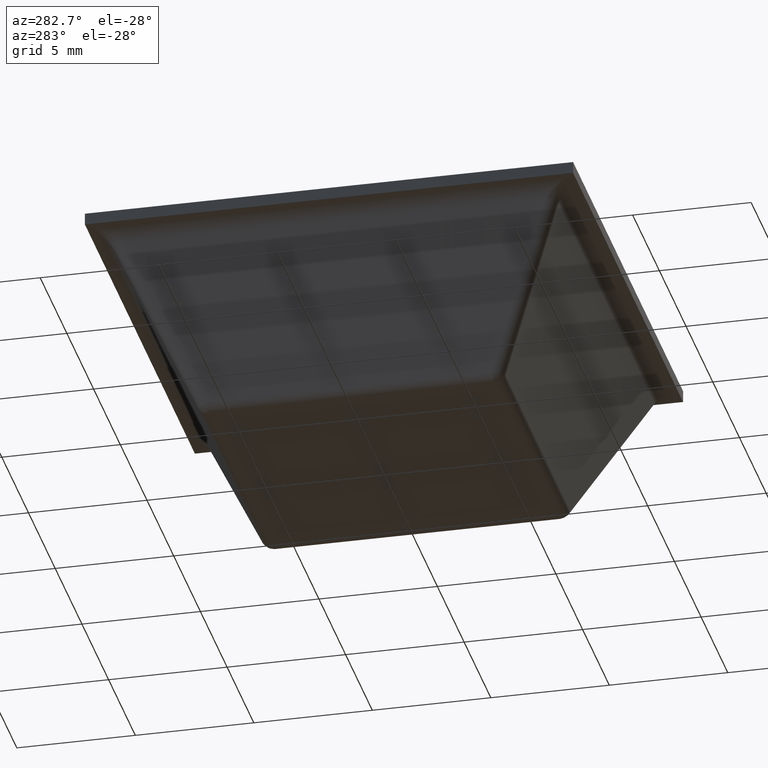
[diagram: clean part render]
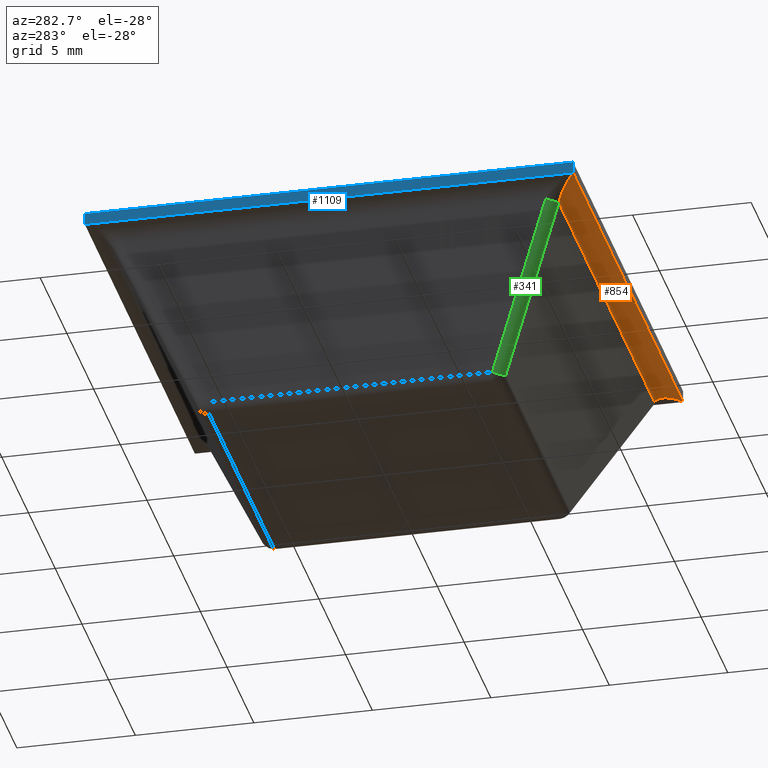
[diagram: same view with three faces highlighted in distinct colors, each labeled with its STEP entity id]
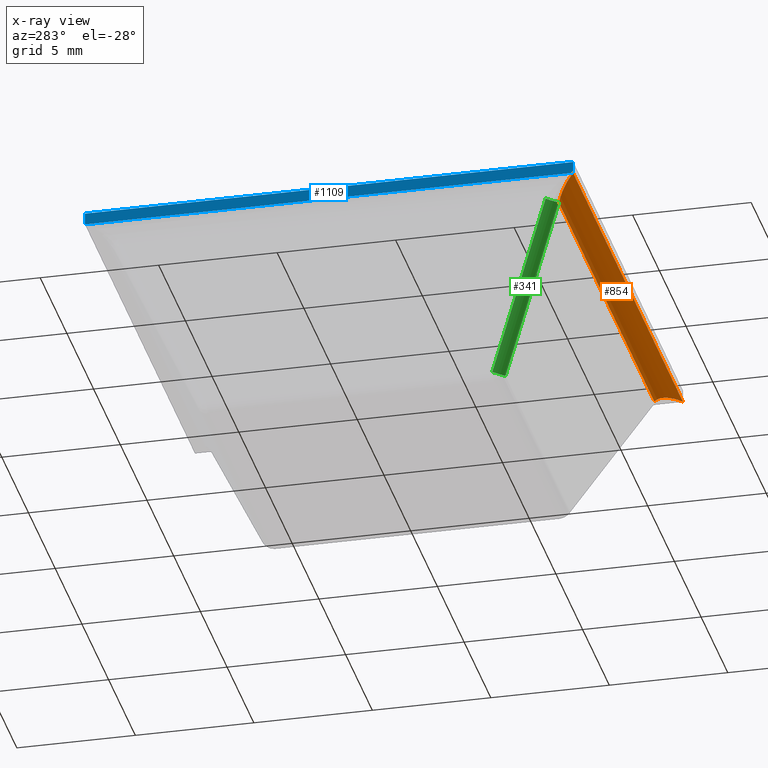
[diagram: x-ray of the same camera — body ghosted, the three highlighted faces saturated]
A machine part, auxiliary view with three faces highlighted in distinct colors.
The next image is the same camera in x-ray (body ghosted, the three faces saturated) — at least one of them is partly hidden behind the body in this view.
Their STEP definitions:

[orange] entity #854 — the highlighted face is a freeform B-spline surface patch.
#132=CARTESIAN_POINT('',(8.938393236846089,-9.391547127593508,6.522618273625180));
#133=VERTEX_POINT('',#132);
#193=CARTESIAN_POINT('',(10.297854909088340,-10.297854909088340,7.100000000000001));
#194=VERTEX_POINT('',#193);
#208=CARTESIAN_POINT('',(8.938393236846093,-9.391547127593501,6.522618273625195));
#209=CARTESIAN_POINT('',(9.342249531703445,-9.660784657498404,7.100000000000001));
#210=CARTESIAN_POINT('',(10.297854909088340,-10.297854909088329,7.100000000000001));
#218=(BOUNDED_CURVE()B_SPLINE_CURVE(2,(#208,#209,#210),.UNSPECIFIED.,.F.,.U.)CURVE()GEOMETRIC_REPRESENTATION_ITEM()QUASI_UNIFORM_CURVE()RATIONAL_B_SPLINE_CURVE((1.0,0.843391449335737,1.0))REPRESENTATION_ITEM(''));
#219=EDGE_CURVE('',#133,#194,#218,.T.);
#311=CARTESIAN_POINT('',(-8.938393236846089,-9.391547127593508,6.522618273625180));
#312=VERTEX_POINT('',#311);
#374=CARTESIAN_POINT('',(-10.297854909088340,-10.297854909088340,7.100000000000001));
#375=VERTEX_POINT('',#374);
#376=CARTESIAN_POINT('',(-10.297854909088340,-10.297854909088329,7.100000000000001));
#377=CARTESIAN_POINT('',(-9.342249531703438,-9.660784657498390,7.100000000000001));
#378=CARTESIAN_POINT('',(-8.938393236846100,-9.391547127593494,6.522618273625181));
#386=(BOUNDED_CURVE()B_SPLINE_CURVE(2,(#376,#377,#378),.UNSPECIFIED.,.F.,.U.)CURVE()GEOMETRIC_REPRESENTATION_ITEM()QUASI_UNIFORM_CURVE()RATIONAL_B_SPLINE_CURVE((1.0,0.843391449335732,1.0))REPRESENTATION_ITEM(''));
#387=EDGE_CURVE('',#375,#312,#386,.T.);
#826=CARTESIAN_POINT('',(-10.812747654542759,-10.306581444586710,7.099961923064171));
#827=CARTESIAN_POINT('',(10.825619973179119,-10.306581444586710,7.099961923064171));
#828=CARTESIAN_POINT('',(-10.812747654542758,-9.632098610961799,7.105848045580354));
#829=CARTESIAN_POINT('',(10.825619973179121,-9.632098610961799,7.105848045580354));
#830=CARTESIAN_POINT('',(-10.812747654542759,-9.373975376577054,6.482683432365092));
#831=CARTESIAN_POINT('',(10.825619973179119,-9.373975376577054,6.482683432365092));
#839=(BOUNDED_SURFACE()B_SPLINE_SURFACE(1,2,((#826,#828,#830),(#827,#829,#831)),.UNSPECIFIED.,.F.,.F.,.U.)B_SPLINE_SURFACE_WITH_KNOTS((2,2),(3,3),(0.0,21.638367627721880),(0.0,1.0),.UNSPECIFIED.)GEOMETRIC_REPRESENTATION_ITEM()RATIONAL_B_SPLINE_SURFACE(((1.0,0.829037572555042,1.0),(1.0,0.829037572555042,1.0)))REPRESENTATION_ITEM('')SURFACE());
#840=CARTESIAN_POINT('',(-10.297854909088340,-10.297854909088340,7.100000000000001));
#841=CARTESIAN_POINT('',(10.297854909088340,-10.297854909088340,7.100000000000001));
#842=QUASI_UNIFORM_CURVE('',1,(#840,#841),.UNSPECIFIED.,.F.,.U.);
#843=EDGE_CURVE('',#375,#194,#842,.T.);
#844=ORIENTED_EDGE('',*,*,#843,.F.);
#845=ORIENTED_EDGE('',*,*,#387,.T.);
#846=CARTESIAN_POINT('',(8.938393236846089,-9.391547127593508,6.522618273625180));
#847=CARTESIAN_POINT('',(-8.938393236846089,-9.391547127593508,6.522618273625180));
#848=QUASI_UNIFORM_CURVE('',1,(#846,#847),.UNSPECIFIED.,.F.,.U.);
#849=EDGE_CURVE('',#133,#312,#848,.T.);
#850=ORIENTED_EDGE('',*,*,#849,.F.);
#851=ORIENTED_EDGE('',*,*,#219,.T.);
#852=EDGE_LOOP('',(#844,#845,#850,#851));
#853=FACE_OUTER_BOUND('',#852,.T.);
#854=ADVANCED_FACE('',(#853),#839,.F.);

[blue] entity #1109 — the highlighted face is a freeform B-spline surface patch.
#1026=CARTESIAN_POINT('',(-10.300000000000001,-10.300000000000001,7.100000000000001));
#1027=VERTEX_POINT('',#1026);
#1033=CARTESIAN_POINT('',(-10.300000000000001,10.300000000000001,7.100000000000001));
#1034=VERTEX_POINT('',#1033);
#1035=CARTESIAN_POINT('',(-10.300000000000001,-10.300000000000001,7.100000000000001));
#1036=CARTESIAN_POINT('',(-10.300000000000001,10.300000000000001,7.100000000000001));
#1037=QUASI_UNIFORM_CURVE('',1,(#1035,#1036),.UNSPECIFIED.,.F.,.U.);
#1038=EDGE_CURVE('',#1027,#1034,#1037,.T.);
#1068=CARTESIAN_POINT('',(-10.300000000000001,10.300000000000001,7.600000000000000));
#1069=VERTEX_POINT('',#1068);
#1075=CARTESIAN_POINT('',(-10.300000000000001,-10.300000000000001,7.600000000000000));
#1076=VERTEX_POINT('',#1075);
#1077=CARTESIAN_POINT('',(-10.300000000000001,-10.300000000000001,7.600000000000000));
#1078=CARTESIAN_POINT('',(-10.300000000000001,10.300000000000001,7.600000000000000));
#1079=QUASI_UNIFORM_CURVE('',1,(#1077,#1078),.UNSPECIFIED.,.F.,.U.);
#1080=EDGE_CURVE('',#1076,#1069,#1079,.T.);
#1090=CARTESIAN_POINT('',(-10.300000000000001,-11.328970153451269,7.075024903068021));
#1091=CARTESIAN_POINT('',(-10.300000000000001,-11.328970153451269,7.624974904706999));
#1092=CARTESIAN_POINT('',(-10.300000000000001,11.328970521807969,7.075024903068021));
#1093=CARTESIAN_POINT('',(-10.300000000000001,11.328970521807969,7.624974904706999));
#1094=B_SPLINE_SURFACE_WITH_KNOTS('',1,1,((#1090,#1092),(#1091,#1093)),.UNSPECIFIED.,.F.,.F.,.U.,(2,2),(2,2),(0.041708171780035,0.958291507844999),(0.0,22.657940675259230),.UNSPECIFIED.);
#1095=CARTESIAN_POINT('',(-10.300000000000001,10.300000000000001,7.600000000000000));
#1096=CARTESIAN_POINT('',(-10.300000000000001,10.300000000000001,7.100000000000001));
#1097=QUASI_UNIFORM_CURVE('',1,(#1095,#1096),.UNSPECIFIED.,.F.,.U.);
#1098=EDGE_CURVE('',#1069,#1034,#1097,.T.);
#1099=ORIENTED_EDGE('',*,*,#1098,.T.);
#1100=ORIENTED_EDGE('',*,*,#1038,.F.);
#1101=CARTESIAN_POINT('',(-10.300000000000001,-10.300000000000001,7.600000000000000));
#1102=CARTESIAN_POINT('',(-10.300000000000001,-10.300000000000001,7.100000000000001));
#1103=QUASI_UNIFORM_CURVE('',1,(#1101,#1102),.UNSPECIFIED.,.F.,.U.);
#1104=EDGE_CURVE('',#1076,#1027,#1103,.T.);
#1105=ORIENTED_EDGE('',*,*,#1104,.F.);
#1106=ORIENTED_EDGE('',*,*,#1080,.T.);
#1107=EDGE_LOOP('',(#1099,#1100,#1105,#1106));
#1108=FACE_OUTER_BOUND('',#1107,.T.);
#1109=ADVANCED_FACE('',(#1108),#1094,.T.);

[green] entity #341 — the highlighted face is a freeform B-spline surface patch.
#251=CARTESIAN_POINT('',(-6.484618936203209,-6.031465045455819,0.288690863187422));
#252=VERTEX_POINT('',#251);
#266=CARTESIAN_POINT('',(-6.031465045455819,-6.484618936203209,0.288690863187422));
#267=VERTEX_POINT('',#266);
#281=CARTESIAN_POINT('',(-6.031465045455816,-6.484618936203209,0.288690863187414));
#282=CARTESIAN_POINT('',(-6.415947910680333,-6.415947910680306,0.141425378756792));
#283=CARTESIAN_POINT('',(-6.484618936203209,-6.031465045455819,0.288690863187422));
#291=(BOUNDED_CURVE()B_SPLINE_CURVE(2,(#281,#282,#283),.UNSPECIFIED.,.F.,.U.)CURVE()GEOMETRIC_REPRESENTATION_ITEM()QUASI_UNIFORM_CURVE()RATIONAL_B_SPLINE_CURVE((1.0,0.767660799182132,1.0))REPRESENTATION_ITEM(''));
#292=EDGE_CURVE('',#267,#252,#291,.T.);
#297=CARTESIAN_POINT('',(-5.944417026734398,-6.414292384941111,0.138451501433058));
#298=CARTESIAN_POINT('',(-8.998508457813827,-9.468383816020538,6.687971487024228));
#299=CARTESIAN_POINT('',(-6.367400170289844,-6.351741020429443,-0.029620603131557));
#300=CARTESIAN_POINT('',(-9.421491601369274,-9.405832451508868,6.519899382459612));
#301=CARTESIAN_POINT('',(-6.416270008486036,-5.929413543143065,0.144525559934702));
#302=CARTESIAN_POINT('',(-9.470361439565465,-8.983504974222489,6.694045545525874));
#310=(BOUNDED_SURFACE()B_SPLINE_SURFACE(1,2,((#297,#299,#301),(#298,#300,#302)),.UNSPECIFIED.,.F.,.F.,.U.)B_SPLINE_SURFACE_WITH_KNOTS((2,2),(3,3),(0.0,7.845454797552769),(0.0,0.989247800832521),.UNSPECIFIED.)GEOMETRIC_REPRESENTATION_ITEM()RATIONAL_B_SPLINE_SURFACE(((1.0,0.734242240124967,0.994285039271041),(1.0,0.734242240124967,0.994285039271041)))REPRESENTATION_ITEM('')SURFACE());
#311=CARTESIAN_POINT('',(-8.938393236846089,-9.391547127593508,6.522618273625180));
#312=VERTEX_POINT('',#311);
#313=CARTESIAN_POINT('',(-9.391547127593508,-8.938393236846089,6.522618273625180));
#314=VERTEX_POINT('',#313);
#315=CARTESIAN_POINT('',(-8.938393236846089,-9.391547127593507,6.522618273625181));
#316=CARTESIAN_POINT('',(-9.322876102070598,-9.322876102070600,6.375352789194561));
#317=CARTESIAN_POINT('',(-9.391547127593505,-8.938393236846089,6.522618273625176));
#325=(BOUNDED_CURVE()B_SPLINE_CURVE(2,(#315,#316,#317),.UNSPECIFIED.,.F.,.U.)CURVE()GEOMETRIC_REPRESENTATION_ITEM()QUASI_UNIFORM_CURVE()RATIONAL_B_SPLINE_CURVE((1.0,0.767660799182136,1.0))REPRESENTATION_ITEM(''));
#326=EDGE_CURVE('',#312,#314,#325,.T.);
#327=ORIENTED_EDGE('',*,*,#326,.T.);
#328=CARTESIAN_POINT('',(-6.484618936203209,-6.031465045455819,0.288690863187422));
#329=CARTESIAN_POINT('',(-9.391547127593508,-8.938393236846089,6.522618273625180));
#330=QUASI_UNIFORM_CURVE('',1,(#328,#329),.UNSPECIFIED.,.F.,.U.);
#331=EDGE_CURVE('',#252,#314,#330,.T.);
#332=ORIENTED_EDGE('',*,*,#331,.F.);
#333=ORIENTED_EDGE('',*,*,#292,.F.);
#334=CARTESIAN_POINT('',(-8.938393236846089,-9.391547127593508,6.522618273625180));
#335=CARTESIAN_POINT('',(-6.031465045455819,-6.484618936203209,0.288690863187422));
#336=QUASI_UNIFORM_CURVE('',1,(#334,#335),.UNSPECIFIED.,.F.,.U.);
#337=EDGE_CURVE('',#312,#267,#336,.T.);
#338=ORIENTED_EDGE('',*,*,#337,.F.);
#339=EDGE_LOOP('',(#327,#332,#333,#338));
#340=FACE_OUTER_BOUND('',#339,.T.);
#341=ADVANCED_FACE('',(#340),#310,.T.);